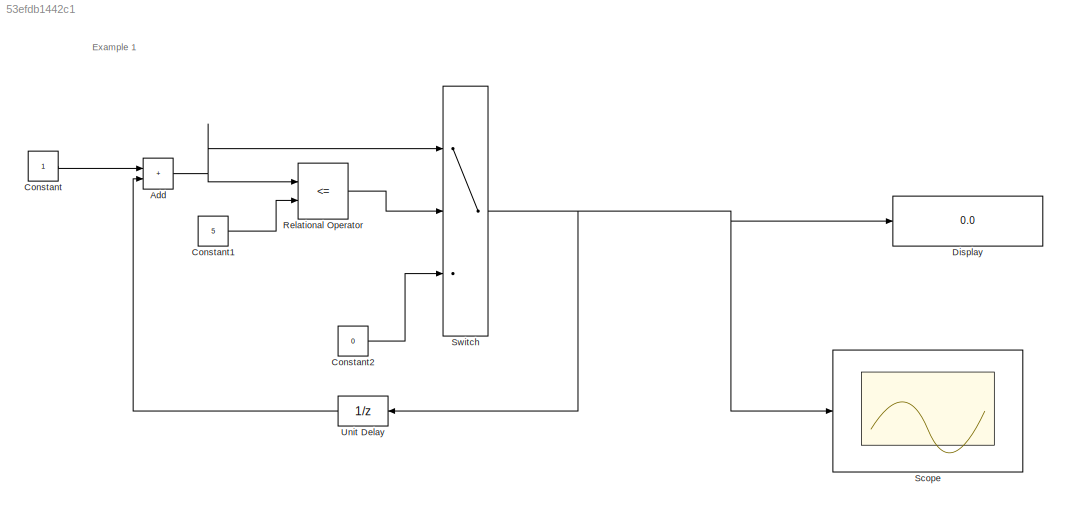
MODEL slx_53efdb1442c1
KIND model
CONFIG AbsTol = auto
CONFIG EnableMultiTasking = off
CONFIG FixedStep = auto
CONFIG MaxStep = auto
CONFIG MinStep = auto
CONFIG RelTol = 1e-3
CONFIG SampleTimeConstraint = Unconstrained
CONFIG Solver = VariableStepAuto
CONFIG SolverName = VariableStepAuto
CONFIG StartTime = 0.0
CONFIG StopTime = 10.0
BLOCK [Sum] Add
  IconShape = rectangular
  Ports = [2, 1]
BLOCK [Constant] Constant
BLOCK [Constant] Constant1
  Value = 5
BLOCK [Constant] Constant2
  Value = 0
BLOCK [Display] Display
  Decimation = 1
  Ports = [1]
BLOCK [RelationalOperator] Relational Operator
  InputSameDT = off
  Operator = <=
  OutDataTypeStr = boolean
  Ports = [2, 1]
  RndMeth = Simplest
BLOCK [Scope] Scope
  Floating = off
  NumInputPorts = 1
  Ports = [1]
  ScopeSpecificationString = Simulink.scopes.TimeScopeBlockCfg('CurrentConfiguration', extmgr.ConfigurationSet(extmgr.Configuration('Core','General UI',true),extmgr.Configuration('Core','Source UI',true),extmgr.Configuration('Sources','WiredSimulink',true),extmgr.Configuration('Visuals','Time Domain',true,'SerializedDisplays',{struct('MinYLimReal','-8.42086','MaxYLimReal','13.67259','YLabelReal','','MinYLimMag','0.00000','Max...<+1468ch>
BLOCK [Switch] Switch
  InputSameDT = off
  SaturateOnIntegerOverflow = off
  Threshold = 1
BLOCK [UnitDelay] Unit Delay
  HasFrameUpgradeWarning = on
  InitialCondition = -1
  NameLocation = top
  SampleTime = -1
ANNOTATION (root): Example 1
NET Add:1 -> Relational Operator:1, Switch:1
LINE Constant1:1 -> Relational Operator:2
LINE Constant2:1 -> Switch:3
LINE Constant:1 -> Add:1
LINE Relational Operator:1 -> Switch:2
NET Switch:1 -> Display:1, Scope:1, Unit Delay:1
LINE Unit Delay:1 -> Add:2
note: NET lines group one-source signal fan-out (src -> all destinations, sorted); 1:1 wires keep LINE
